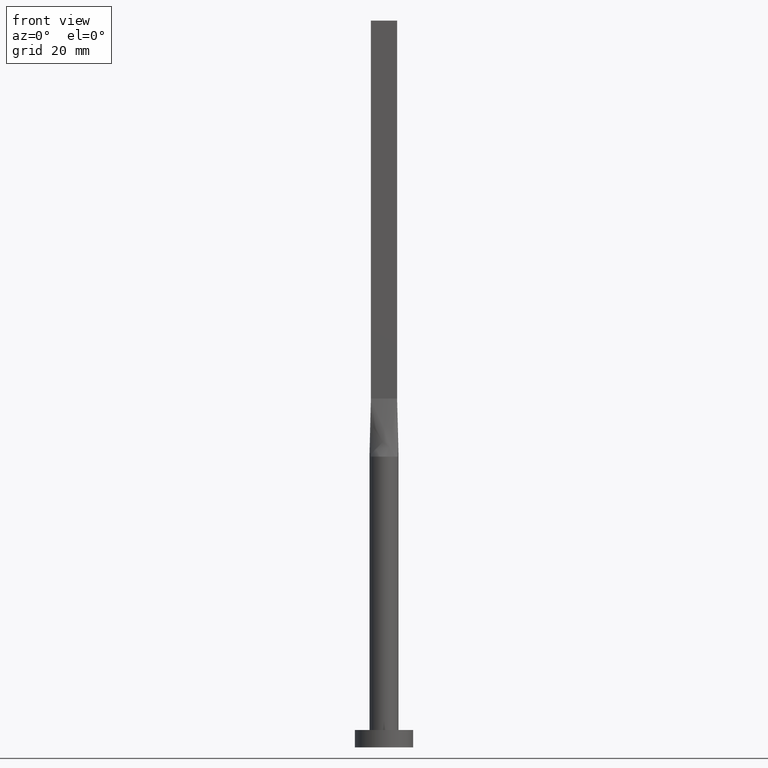
[diagram: clean part render]
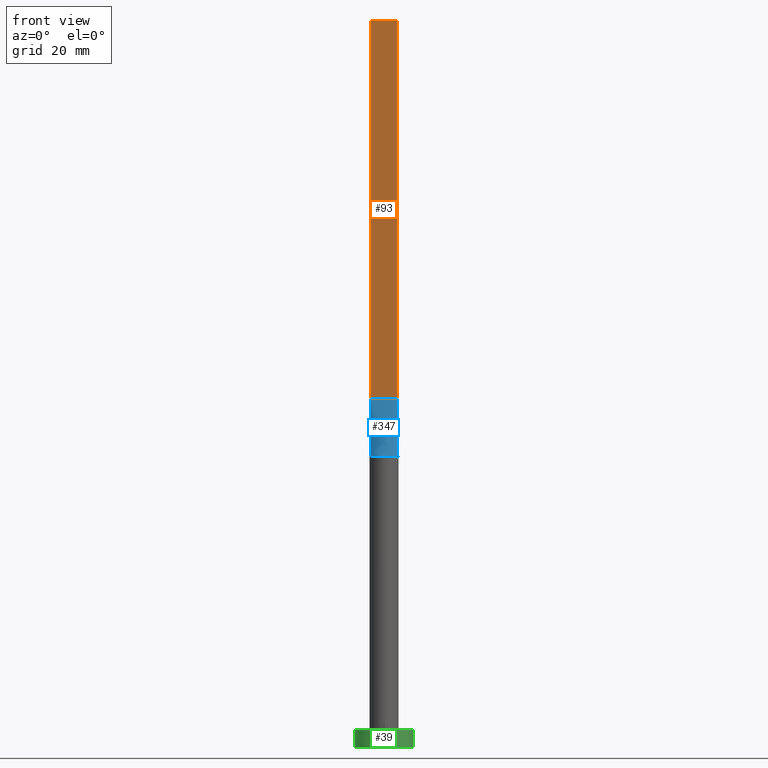
[diagram: same view with three faces highlighted in distinct colors, each labeled with its STEP entity id]
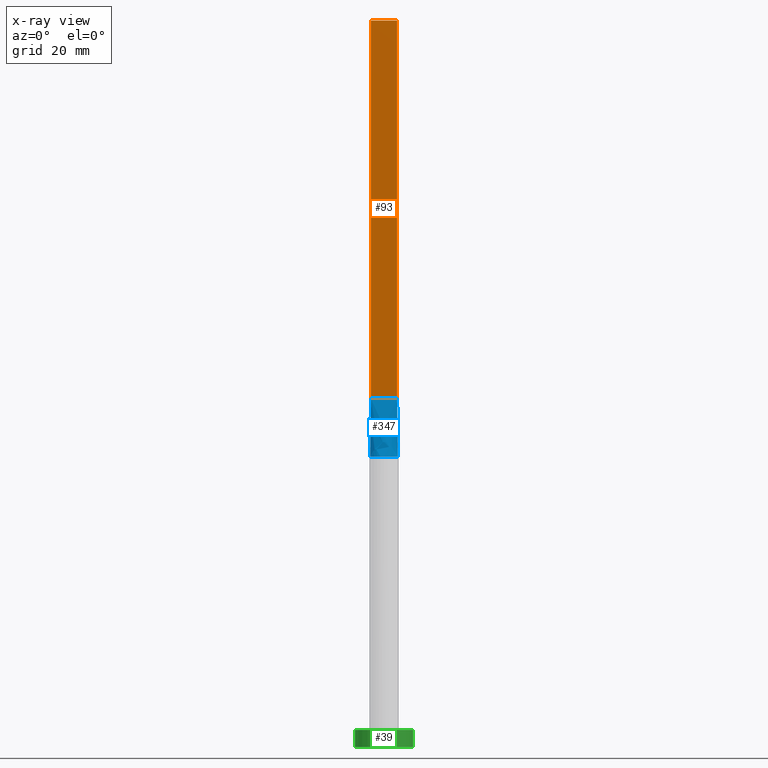
[diagram: x-ray of the same camera — body ghosted, the three highlighted faces saturated]
A machine part, front view with three faces highlighted in distinct colors.
The next image is the same camera in x-ray (body ghosted, the three faces saturated) — at least one of them is partly hidden behind the body in this view.
Their STEP definitions:

[orange] entity #93 — the highlighted planar face has unit normal (0, 1, -0).
#2 = VERTEX_POINT ( 'NONE', #543 ) ;
#23 = FACE_OUTER_BOUND ( 'NONE', #323, .T. ) ;
#24 = DIRECTION ( 'NONE',  ( -0.000000000000000000, -0.000000000000000000, -1.000000000000000000 ) ) ;
#36 = VECTOR ( 'NONE', #172, 1000.000000000000000 ) ;
#70 = VERTEX_POINT ( 'NONE', #523 ) ;
#78 = CARTESIAN_POINT ( 'NONE',  ( -2.250000000000000000, -0.7499999999999995559, 125.0000000000000000 ) ) ;
#93 = ADVANCED_FACE ( 'NONE', ( #23 ), #194, .F. ) ;
#110 = CARTESIAN_POINT ( 'NONE',  ( 2.250000000000000000, -0.7499999999999997780, 125.0000000000000000 ) ) ;
#135 = EDGE_CURVE ( 'NONE', #169, #392, #167, .T. ) ;
#149 = CARTESIAN_POINT ( 'NONE',  ( 2.250000000000000000, -0.7499999999999997780, 60.00000000000000711 ) ) ;
#167 = LINE ( 'NONE', #410, #36 ) ;
#169 = VERTEX_POINT ( 'NONE', #222 ) ;
#172 = DIRECTION ( 'NONE',  ( 1.000000000000000000, -4.818676322157797621E-17, 0.000000000000000000 ) ) ;
#194 = PLANE ( 'NONE',  #239 ) ;
#206 = VECTOR ( 'NONE', #24, 1000.000000000000000 ) ;
#222 = CARTESIAN_POINT ( 'NONE',  ( -2.250000000000000000, -0.7499999999999995559, 60.00000000000000711 ) ) ;
#239 = AXIS2_PLACEMENT_3D ( 'NONE', #376, #458, #414 ) ;
#242 = CARTESIAN_POINT ( 'NONE',  ( -2.250000000000000000, -0.7499999999999995559, 125.0000000000000000 ) ) ;
#282 = EDGE_CURVE ( 'NONE', #70, #392, #567, .T. ) ;
#285 = DIRECTION ( 'NONE',  ( -0.000000000000000000, -0.000000000000000000, -1.000000000000000000 ) ) ;
#323 = EDGE_LOOP ( 'NONE', ( #388, #394, #343, #336 ) ) ;
#336 = ORIENTED_EDGE ( 'NONE', *, *, #459, .T. ) ;
#337 = LINE ( 'NONE', #242, #553 ) ;
#343 = ORIENTED_EDGE ( 'NONE', *, *, #476, .F. ) ;
#376 = CARTESIAN_POINT ( 'NONE',  ( -2.250000000000000000, -0.7499999999999995559, 125.0000000000000000 ) ) ;
#388 = ORIENTED_EDGE ( 'NONE', *, *, #135, .T. ) ;
#392 = VERTEX_POINT ( 'NONE', #149 ) ;
#394 = ORIENTED_EDGE ( 'NONE', *, *, #282, .F. ) ;
#397 = DIRECTION ( 'NONE',  ( 1.000000000000000000, -4.818676322157797621E-17, 0.000000000000000000 ) ) ;
#410 = CARTESIAN_POINT ( 'NONE',  ( -2.250000000000000000, -0.7499999999999995559, 60.00000000000000711 ) ) ;
#414 = DIRECTION ( 'NONE',  ( -1.000000000000000000, 4.818676322157797005E-17, 0.000000000000000000 ) ) ;
#429 = VECTOR ( 'NONE', #285, 1000.000000000000000 ) ;
#458 = DIRECTION ( 'NONE',  ( 4.818676322157797005E-17, 1.000000000000000000, -0.000000000000000000 ) ) ;
#459 = EDGE_CURVE ( 'NONE', #2, #169, #537, .T. ) ;
#476 = EDGE_CURVE ( 'NONE', #2, #70, #337, .T. ) ;
#523 = CARTESIAN_POINT ( 'NONE',  ( 2.250000000000000000, -0.7499999999999997780, 125.0000000000000000 ) ) ;
#537 = LINE ( 'NONE', #78, #429 ) ;
#543 = CARTESIAN_POINT ( 'NONE',  ( -2.250000000000000000, -0.7499999999999995559, 125.0000000000000000 ) ) ;
#553 = VECTOR ( 'NONE', #397, 1000.000000000000000 ) ;
#567 = LINE ( 'NONE', #110, #206 ) ;

[blue] entity #347 — the highlighted face is a freeform B-spline surface patch.
#14 = CARTESIAN_POINT ( 'NONE',  ( 2.309208245126284087, -0.9780694150420953248, 49.99999999999999289 ) ) ;
#36 = VECTOR ( 'NONE', #172, 1000.000000000000000 ) ;
#44 = DIRECTION ( 'NONE',  ( -0.01216982305197525371, -0.004056607683991732445, -0.9999177162851859979 ) ) ;
#55 = CARTESIAN_POINT ( 'NONE',  ( -0.3003163416900532234, -2.499999999999999556, 49.99999999999999289 ) ) ;
#60 = CARTESIAN_POINT ( 'NONE',  ( 1.145194483530141083, -2.241235424885161365, 49.99999999999998579 ) ) ;
#64 = CARTESIAN_POINT ( 'NONE',  ( 0.3003163416900518912, -2.500000000000001332, 50.00000000000000711 ) ) ;
#66 = CARTESIAN_POINT ( 'NONE',  ( 1.390086206340438890, -2.094828891646495883, 50.00000000000000711 ) ) ;
#81 = LINE ( 'NONE', #466, #291 ) ;
#87 = CARTESIAN_POINT ( 'NONE',  ( -2.062499999999999556, -0.7499999999999995559, 60.00000000000000711 ) ) ;
#88 = ORIENTED_EDGE ( 'NONE', *, *, #135, .F. ) ;
#96 = CARTESIAN_POINT ( 'NONE',  ( 2.250000000000000000, -0.7499999999999997780, 60.00000000000000711 ) ) ;
#101 = CARTESIAN_POINT ( 'NONE',  ( 1.799471046981195199, -1.755719709239274229, 50.00000000000000711 ) ) ;
#130 = CARTESIAN_POINT ( 'NONE',  ( 2.062499999999999556, -0.7499999999999997780, 60.00000000000000000 ) ) ;
#131 = CARTESIAN_POINT ( 'NONE',  ( -1.964343640889991249, -1.563766543189046843, 50.00000000000000711 ) ) ;
#135 = EDGE_CURVE ( 'NONE', #169, #392, #167, .T. ) ;
#136 = DIRECTION ( 'NONE',  ( -0.01216982305197521208, 0.004056607683991797497, 0.9999177162851859979 ) ) ;
#145 = CARTESIAN_POINT ( 'NONE',  ( -0.1875000000000002498, -0.7499999999999995559, 60.00000000000000000 ) ) ;
#149 = CARTESIAN_POINT ( 'NONE',  ( 2.250000000000000000, -0.7499999999999997780, 60.00000000000000711 ) ) ;
#159 = VERTEX_POINT ( 'NONE', #495 ) ;
#167 = LINE ( 'NONE', #410, #36 ) ;
#168 = CARTESIAN_POINT ( 'NONE',  ( -0.7499999999999998890, -0.7499999999999995559, 60.00000000000000000 ) ) ;
#169 = VERTEX_POINT ( 'NONE', #222 ) ;
#172 = DIRECTION ( 'NONE',  ( 1.000000000000000000, -4.818676322157797621E-17, 0.000000000000000000 ) ) ;
#185 = CARTESIAN_POINT ( 'NONE',  ( 0.9374999999999997780, -0.7499999999999996669, 60.00000000000000000 ) ) ;
#209 = CARTESIAN_POINT ( 'NONE',  ( -1.390086206340439334, -2.094828891646495883, 50.00000000000000711 ) ) ;
#211 = ORIENTED_EDGE ( 'NONE', *, *, #447, .T. ) ;
#212 = CARTESIAN_POINT ( 'NONE',  ( -2.371775648085652222, -0.7905922034696525325, 50.00000000000000000 ) ) ;
#214 = ORIENTED_EDGE ( 'NONE', *, *, #248, .T. ) ;
#216 = CARTESIAN_POINT ( 'NONE',  ( -2.371708245126284975, -0.7905694150420944366, 50.00000000000000000 ) ) ;
#222 = CARTESIAN_POINT ( 'NONE',  ( -2.250000000000000000, -0.7499999999999995559, 60.00000000000000711 ) ) ;
#225 = LINE ( 'NONE', #308, #427 ) ;
#248 = EDGE_CURVE ( 'NONE', #159, #392, #225, .T. ) ;
#260 = CARTESIAN_POINT ( 'NONE',  ( -2.309208245126285419, -0.9780694150420946587, 50.00000000000002132 ) ) ;
#265 = CARTESIAN_POINT ( 'NONE',  ( 1.312499999999999778, -0.7499999999999997780, 60.00000000000000000 ) ) ;
#267 = AXIS2_PLACEMENT_3D ( 'NONE', #386, #500, #390 ) ;
#273 = CARTESIAN_POINT ( 'NONE',  ( 0.6000386972366476002, -2.444291348568452538, 50.00000000000000000 ) ) ;
#283 = CIRCLE ( 'NONE', #267, 2.500000000000000000 ) ;
#291 = VECTOR ( 'NONE', #44, 1000.000000000000114 ) ;
#302 = FACE_OUTER_BOUND ( 'NONE', #446, .T. ) ;
#308 = CARTESIAN_POINT ( 'NONE',  ( 2.310854122563142266, -0.7702847075210476069, 55.00000000000000711 ) ) ;
#316 = CARTESIAN_POINT ( 'NONE',  ( 0.1874999999999995559, -0.7499999999999995559, 60.00000000000000000 ) ) ;
#324 = CARTESIAN_POINT ( 'NONE',  ( 1.874999999999999556, -0.7499999999999997780, 60.00000000000000000 ) ) ;
#344 = CARTESIAN_POINT ( 'NONE',  ( -0.6000386972366480443, -2.444291348568451649, 49.99999999999998579 ) ) ;
#347 = ADVANCED_FACE ( 'NONE', ( #302 ), #379, .T. ) ;
#352 = ORIENTED_EDGE ( 'NONE', *, *, #422, .T. ) ;
#354 = CARTESIAN_POINT ( 'NONE',  ( 2.371708245126284531, -0.7905694150420953248, 50.00000000000000000 ) ) ;
#355 = CARTESIAN_POINT ( 'NONE',  ( -1.874999999999999556, -0.7499999999999995559, 60.00000000000000711 ) ) ;
#361 = CARTESIAN_POINT ( 'NONE',  ( 0.3749999999999995559, -0.7499999999999995559, 60.00000000000000000 ) ) ;
#366 = CARTESIAN_POINT ( 'NONE',  ( -0.3750000000000001110, -0.7499999999999995559, 60.00000000000000000 ) ) ;
#379 = B_SPLINE_SURFACE_WITH_KNOTS ( 'NONE', 3, 1, ( 
 ( #216, #506 ),
 ( #260, #87 ),
 ( #536, #355 ),
 ( #131, #512 ),
 ( #450, #406 ),
 ( #209, #456 ),
 ( #402, #168 ),
 ( #344, #366 ),
 ( #55, #145 ),
 ( #64, #316 ),
 ( #273, #361 ),
 ( #60, #473 ),
 ( #66, #185 ),
 ( #101, #265 ),
 ( #436, #420 ),
 ( #516, #324 ),
 ( #14, #130 ),
 ( #354, #96 ) ),
 .UNSPECIFIED., .F., .F., .F.,
 ( 4, 2, 2, 2, 2, 2, 2, 2, 4 ),
 ( 2, 2 ),
 ( 0.000000000000000000, 0.1250000000000000555, 0.2500000000000001110, 0.3750000000000001110, 0.5000000000000001110, 0.6250000000000000000, 0.7500000000000000000, 0.8749999999999998890, 1.000000000000000000 ),
 ( 0.000000000000000000, 1.000000000000000000 ),
 .UNSPECIFIED. ) ;
#386 = CARTESIAN_POINT ( 'NONE',  ( 0.000000000000000000, 0.000000000000000000, 50.00000000000000000 ) ) ;
#390 = DIRECTION ( 'NONE',  ( 1.000000000000000000, 0.000000000000000000, 0.000000000000000000 ) ) ;
#392 = VERTEX_POINT ( 'NONE', #149 ) ;
#402 = CARTESIAN_POINT ( 'NONE',  ( -1.145194483530141305, -2.241235424885160477, 49.99999999999999289 ) ) ;
#406 = CARTESIAN_POINT ( 'NONE',  ( -1.312499999999999778, -0.7499999999999995559, 60.00000000000000000 ) ) ;
#410 = CARTESIAN_POINT ( 'NONE',  ( -2.250000000000000000, -0.7499999999999995559, 60.00000000000000711 ) ) ;
#420 = CARTESIAN_POINT ( 'NONE',  ( 1.499999999999999556, -0.7499999999999997780, 60.00000000000000000 ) ) ;
#422 = EDGE_CURVE ( 'NONE', #169, #472, #81, .T. ) ;
#427 = VECTOR ( 'NONE', #136, 1000.000000000000114 ) ;
#436 = CARTESIAN_POINT ( 'NONE',  ( 1.964343640889991249, -1.563766543189047953, 50.00000000000001421 ) ) ;
#446 = EDGE_LOOP ( 'NONE', ( #211, #214, #88, #352 ) ) ;
#447 = EDGE_CURVE ( 'NONE', #472, #159, #283, .T. ) ;
#450 = CARTESIAN_POINT ( 'NONE',  ( -1.799471046981195421, -1.755719709239273785, 50.00000000000000711 ) ) ;
#456 = CARTESIAN_POINT ( 'NONE',  ( -0.9375000000000000000, -0.7499999999999995559, 60.00000000000000000 ) ) ;
#466 = CARTESIAN_POINT ( 'NONE',  ( -2.310854122563142266, -0.7702847075210469407, 55.00000000000000711 ) ) ;
#472 = VERTEX_POINT ( 'NONE', #212 ) ;
#473 = CARTESIAN_POINT ( 'NONE',  ( 0.7499999999999995559, -0.7499999999999995559, 60.00000000000000000 ) ) ;
#495 = CARTESIAN_POINT ( 'NONE',  ( 2.371798206859841329, -0.7905998626979697796, 50.00000000000000000 ) ) ;
#500 = DIRECTION ( 'NONE',  ( 0.000000000000000000, 0.000000000000000000, 1.000000000000000000 ) ) ;
#506 = CARTESIAN_POINT ( 'NONE',  ( -2.250000000000000000, -0.7499999999999995559, 60.00000000000000711 ) ) ;
#512 = CARTESIAN_POINT ( 'NONE',  ( -1.499999999999999556, -0.7499999999999995559, 60.00000000000000000 ) ) ;
#516 = CARTESIAN_POINT ( 'NONE',  ( 2.218933079238280204, -1.174882007251999871, 49.99999999999999289 ) ) ;
#536 = CARTESIAN_POINT ( 'NONE',  ( -2.218933079238281980, -1.174882007251999427, 50.00000000000000000 ) ) ;

[green] entity #39 — the highlighted cylindrical surface (edge-blend (fillet) strip) has radius 5 mm, axis along (-0, -0, -1).
#1 = CARTESIAN_POINT ( 'NONE',  ( -5.000000000000000000, 0.000000000000000000, 0.000000000000000000 ) ) ;
#13 = CARTESIAN_POINT ( 'NONE',  ( 5.000000000000000000, 6.123233995736766282E-16, 0.000000000000000000 ) ) ;
#25 = ORIENTED_EDGE ( 'NONE', *, *, #342, .T. ) ;
#26 = LINE ( 'NONE', #380, #170 ) ;
#34 = VERTEX_POINT ( 'NONE', #13 ) ;
#39 = ADVANCED_FACE ( 'NONE', ( #547 ), #301, .T. ) ;
#53 = VERTEX_POINT ( 'NONE', #527 ) ;
#54 = DIRECTION ( 'NONE',  ( 0.000000000000000000, 0.000000000000000000, 1.000000000000000000 ) ) ;
#74 = LINE ( 'NONE', #384, #84 ) ;
#84 = VECTOR ( 'NONE', #188, 1000.000000000000000 ) ;
#91 = ORIENTED_EDGE ( 'NONE', *, *, #305, .F. ) ;
#94 = CARTESIAN_POINT ( 'NONE',  ( 0.000000000000000000, 0.000000000000000000, 3.000000000000000000 ) ) ;
#102 = CARTESIAN_POINT ( 'NONE',  ( 0.000000000000000000, 0.000000000000000000, 0.000000000000000000 ) ) ;
#129 = VERTEX_POINT ( 'NONE', #1 ) ;
#155 = ORIENTED_EDGE ( 'NONE', *, *, #404, .F. ) ;
#160 = AXIS2_PLACEMENT_3D ( 'NONE', #94, #306, #511 ) ;
#170 = VECTOR ( 'NONE', #346, 1000.000000000000000 ) ;
#179 = DIRECTION ( 'NONE',  ( 1.000000000000000000, 0.000000000000000000, 0.000000000000000000 ) ) ;
#186 = EDGE_CURVE ( 'NONE', #129, #34, #217, .T. ) ;
#188 = DIRECTION ( 'NONE',  ( -0.000000000000000000, -0.000000000000000000, -1.000000000000000000 ) ) ;
#217 = CIRCLE ( 'NONE', #250, 5.000000000000000000 ) ;
#238 = ORIENTED_EDGE ( 'NONE', *, *, #186, .T. ) ;
#243 = VERTEX_POINT ( 'NONE', #555 ) ;
#250 = AXIS2_PLACEMENT_3D ( 'NONE', #102, #311, #179 ) ;
#301 = CYLINDRICAL_SURFACE ( 'NONE', #160, 5.000000000000000000 ) ;
#305 = EDGE_CURVE ( 'NONE', #53, #34, #74, .T. ) ;
#306 = DIRECTION ( 'NONE',  ( -0.000000000000000000, -0.000000000000000000, -1.000000000000000000 ) ) ;
#311 = DIRECTION ( 'NONE',  ( 0.000000000000000000, 0.000000000000000000, 1.000000000000000000 ) ) ;
#342 = EDGE_CURVE ( 'NONE', #243, #129, #26, .T. ) ;
#346 = DIRECTION ( 'NONE',  ( -0.000000000000000000, -0.000000000000000000, -1.000000000000000000 ) ) ;
#380 = CARTESIAN_POINT ( 'NONE',  ( -5.000000000000000000, 0.000000000000000000, 3.000000000000000000 ) ) ;
#384 = CARTESIAN_POINT ( 'NONE',  ( 5.000000000000000000, 6.123233995736766282E-16, 3.000000000000000000 ) ) ;
#404 = EDGE_CURVE ( 'NONE', #243, #53, #451, .T. ) ;
#451 = CIRCLE ( 'NONE', #522, 5.000000000000000000 ) ;
#455 = EDGE_LOOP ( 'NONE', ( #91, #155, #25, #238 ) ) ;
#463 = DIRECTION ( 'NONE',  ( 1.000000000000000000, 0.000000000000000000, 0.000000000000000000 ) ) ;
#491 = CARTESIAN_POINT ( 'NONE',  ( 0.000000000000000000, 0.000000000000000000, 3.000000000000000000 ) ) ;
#511 = DIRECTION ( 'NONE',  ( -1.000000000000000000, 0.000000000000000000, 0.000000000000000000 ) ) ;
#522 = AXIS2_PLACEMENT_3D ( 'NONE', #491, #54, #463 ) ;
#527 = CARTESIAN_POINT ( 'NONE',  ( 5.000000000000000000, 6.123233995736766282E-16, 3.000000000000000000 ) ) ;
#547 = FACE_OUTER_BOUND ( 'NONE', #455, .T. ) ;
#555 = CARTESIAN_POINT ( 'NONE',  ( -5.000000000000000000, 0.000000000000000000, 3.000000000000000000 ) ) ;